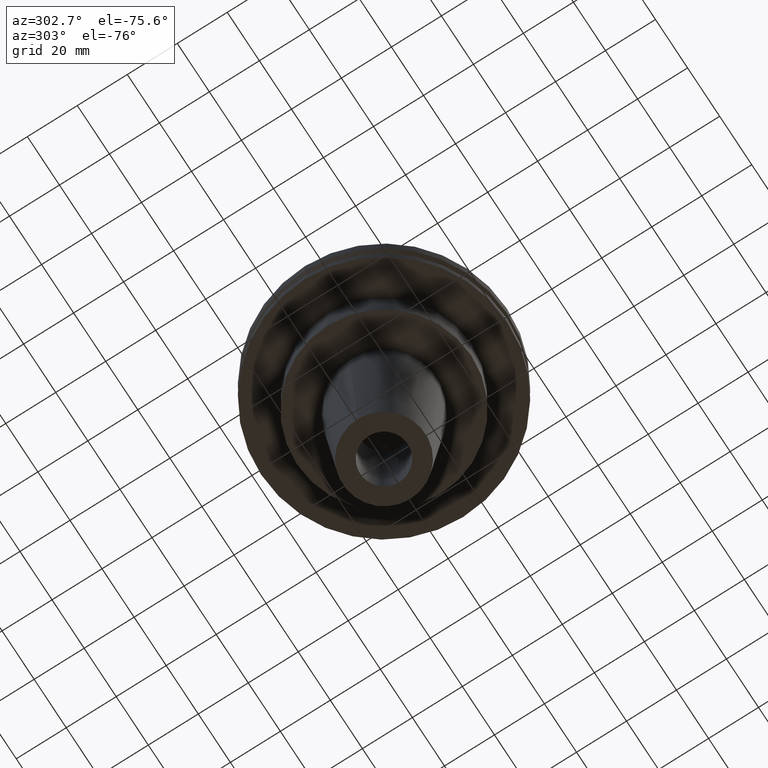
[diagram: clean part render]
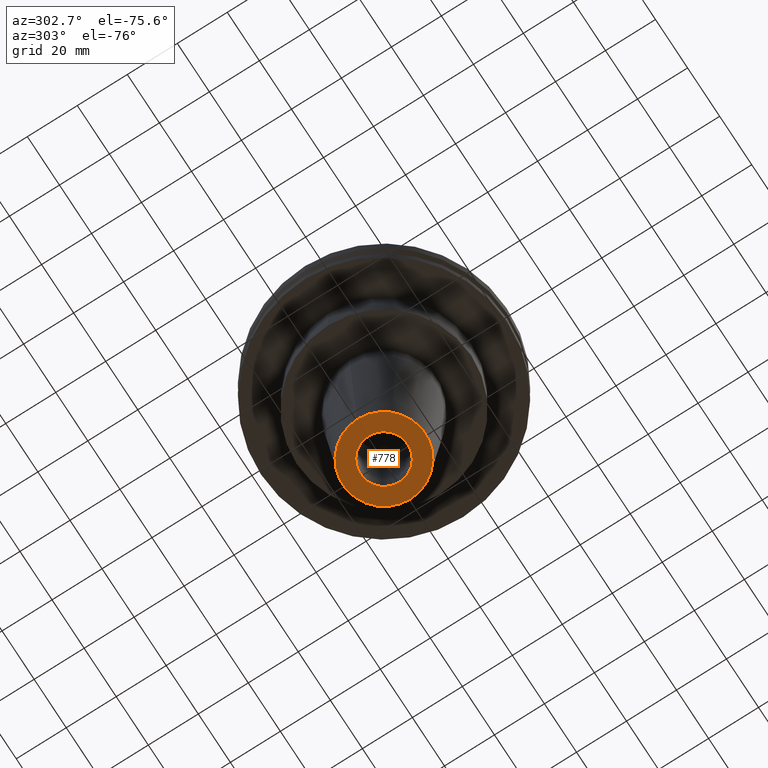
[diagram: same view with one face highlighted and labeled with its STEP entity id]
A machine part, auxiliary view. The second image highlights one B-rep face of the part: STEP entity #778.
In plain terms, the highlighted planar face has unit normal (0, -0, 1).
Its self-contained STEP definition (entity closure, byte-faithful):
#7 = CARTESIAN_POINT ( 'NONE',  ( -16.50000000000000000, 2.296212748401287183E-15, -101.5999999999999943 ) ) ;
#19 = DIRECTION ( 'NONE',  ( -0.000000000000000000, -0.000000000000000000, 1.000000000000000000 ) ) ;
#23 = FACE_BOUND ( 'NONE', #712, .T. ) ;
#53 = ORIENTED_EDGE ( 'NONE', *, *, #797, .T. ) ;
#61 = EDGE_CURVE ( 'NONE', #728, #150, #249, .T. ) ;
#88 = CARTESIAN_POINT ( 'NONE',  ( 0.000000000000000000, 0.000000000000000000, -101.5999999999999943 ) ) ;
#92 = FACE_OUTER_BOUND ( 'NONE', #250, .T. ) ;
#104 = ORIENTED_EDGE ( 'NONE', *, *, #517, .F. ) ;
#140 = AXIS2_PLACEMENT_3D ( 'NONE', #621, #302, #221 ) ;
#150 = VERTEX_POINT ( 'NONE', #743 ) ;
#162 = DIRECTION ( 'NONE',  ( 1.000000000000000000, 0.000000000000000000, 0.000000000000000000 ) ) ;
#185 = ORIENTED_EDGE ( 'NONE', *, *, #61, .T. ) ;
#197 = VERTEX_POINT ( 'NONE', #7 ) ;
#221 = DIRECTION ( 'NONE',  ( 1.000000000000000000, 0.000000000000000000, 0.000000000000000000 ) ) ;
#230 = CARTESIAN_POINT ( 'NONE',  ( 0.000000000000000000, 0.000000000000000000, -101.5999999999999943 ) ) ;
#237 = CARTESIAN_POINT ( 'NONE',  ( 16.50000000000000000, 0.000000000000000000, -101.5999999999999943 ) ) ;
#249 = CIRCLE ( 'NONE', #570, 9.525000000000000355 ) ;
#250 = EDGE_LOOP ( 'NONE', ( #514, #104 ) ) ;
#262 = DIRECTION ( 'NONE',  ( -0.000000000000000000, -0.000000000000000000, 1.000000000000000000 ) ) ;
#296 = AXIS2_PLACEMENT_3D ( 'NONE', #492, #435, #162 ) ;
#302 = DIRECTION ( 'NONE',  ( -0.000000000000000000, -0.000000000000000000, 1.000000000000000000 ) ) ;
#349 = DIRECTION ( 'NONE',  ( 1.000000000000000000, 0.000000000000000000, 0.000000000000000000 ) ) ;
#402 = CIRCLE ( 'NONE', #140, 16.50000000000000000 ) ;
#425 = PLANE ( 'NONE',  #296 ) ;
#435 = DIRECTION ( 'NONE',  ( 0.000000000000000000, -0.000000000000000000, 1.000000000000000000 ) ) ;
#472 = CIRCLE ( 'NONE', #645, 9.525000000000000355 ) ;
#488 = CIRCLE ( 'NONE', #719, 16.50000000000000000 ) ;
#492 = CARTESIAN_POINT ( 'NONE',  ( 0.000000000000000000, 16.50000000000000000, -101.5999999999999943 ) ) ;
#497 = CARTESIAN_POINT ( 'NONE',  ( 9.525000000000000355, 0.000000000000000000, -101.5999999999999943 ) ) ;
#514 = ORIENTED_EDGE ( 'NONE', *, *, #704, .F. ) ;
#517 = EDGE_CURVE ( 'NONE', #197, #742, #488, .T. ) ;
#544 = DIRECTION ( 'NONE',  ( 1.000000000000000000, 0.000000000000000000, 0.000000000000000000 ) ) ;
#564 = DIRECTION ( 'NONE',  ( 1.000000000000000000, 0.000000000000000000, 0.000000000000000000 ) ) ;
#570 = AXIS2_PLACEMENT_3D ( 'NONE', #230, #639, #564 ) ;
#621 = CARTESIAN_POINT ( 'NONE',  ( 0.000000000000000000, 0.000000000000000000, -101.5999999999999943 ) ) ;
#639 = DIRECTION ( 'NONE',  ( -0.000000000000000000, -0.000000000000000000, 1.000000000000000000 ) ) ;
#645 = AXIS2_PLACEMENT_3D ( 'NONE', #88, #19, #349 ) ;
#704 = EDGE_CURVE ( 'NONE', #742, #197, #402, .T. ) ;
#712 = EDGE_LOOP ( 'NONE', ( #185, #53 ) ) ;
#719 = AXIS2_PLACEMENT_3D ( 'NONE', #786, #262, #544 ) ;
#728 = VERTEX_POINT ( 'NONE', #497 ) ;
#742 = VERTEX_POINT ( 'NONE', #237 ) ;
#743 = CARTESIAN_POINT ( 'NONE',  ( -9.525000000000000355, 1.166476076187854022E-15, -101.5999999999999943 ) ) ;
#778 = ADVANCED_FACE ( 'NONE', ( #92, #23 ), #425, .F. ) ;
#786 = CARTESIAN_POINT ( 'NONE',  ( 0.000000000000000000, 0.000000000000000000, -101.5999999999999943 ) ) ;
#797 = EDGE_CURVE ( 'NONE', #150, #728, #472, .T. ) ;